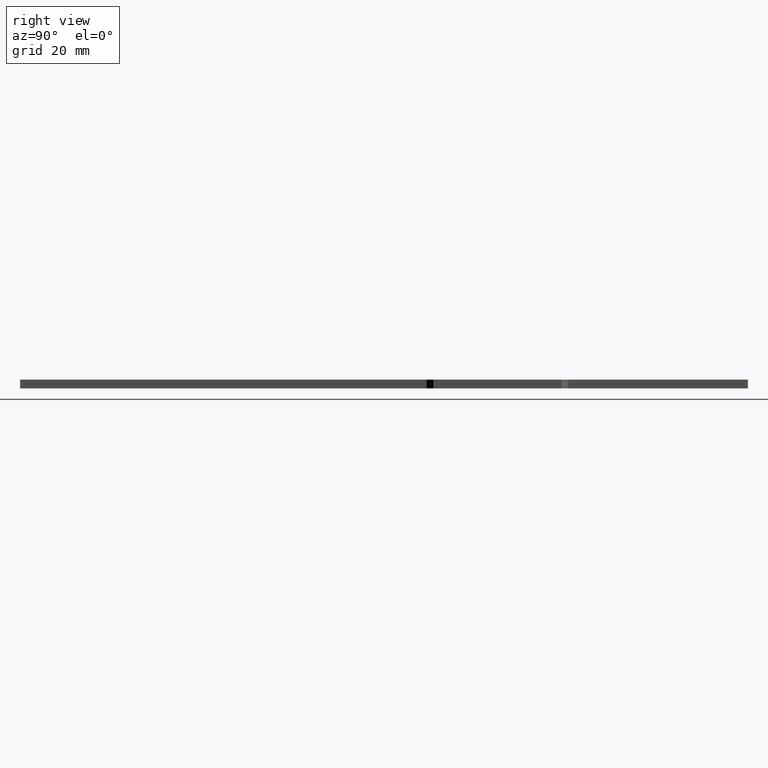
[diagram: clean part render]
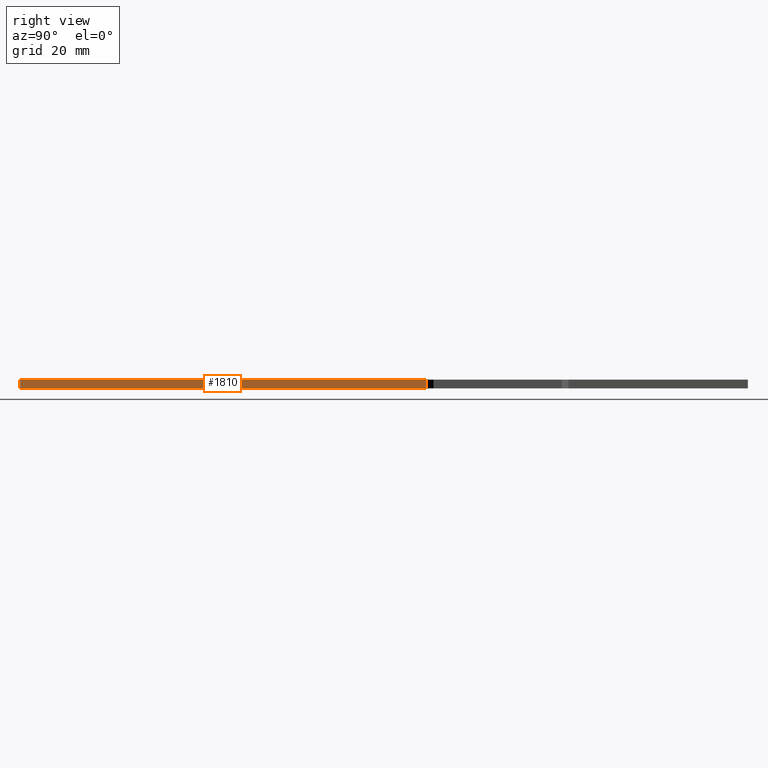
[diagram: same view with one face highlighted and labeled with its STEP entity id]
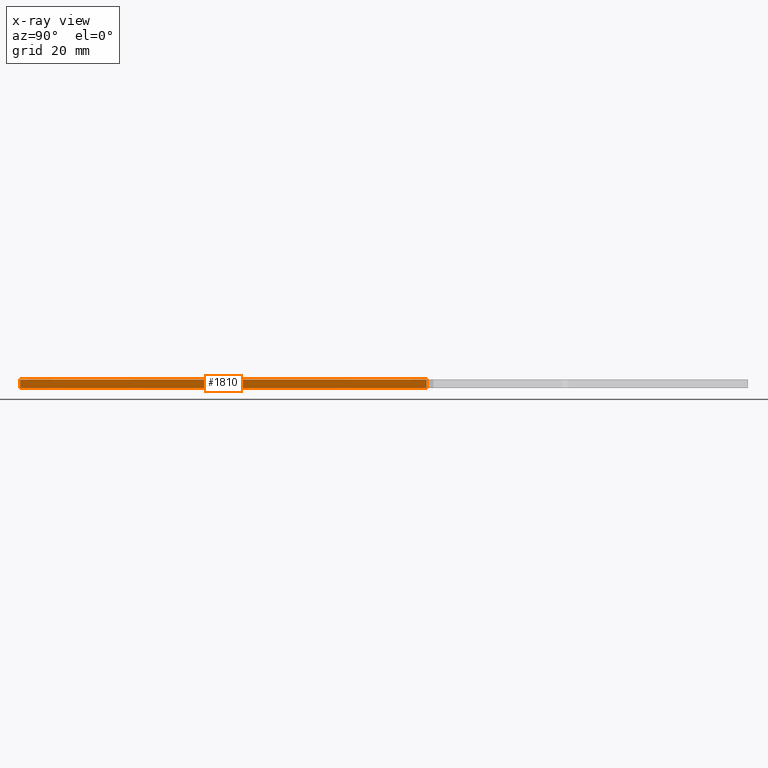
[diagram: x-ray of the same camera — body ghosted, the highlighted face saturated]
A machine part, right view. The second image highlights one B-rep face of the part: STEP entity #1810.
The next image is the same camera in x-ray: the body ghosted, the highlighted face saturated — about 0% of this face is hidden behind the body in this view.
In plain terms, the highlighted planar face has unit normal (-1, -0, 0).
Its self-contained STEP definition (entity closure, byte-faithful):
#34 = PLANE ( 'NONE',  #9527 ) ;
#77 = EDGE_CURVE ( 'NONE', #13752, #2659, #14512, .T. ) ;
#148 = CARTESIAN_POINT ( 'NONE',  ( 12.50000000000001599, -125.0000000000000284, 0.000000000000000000 ) ) ;
#283 = DIRECTION ( 'NONE',  ( 1.249000902703301108E-16, -1.000000000000000000, 0.000000000000000000 ) ) ;
#645 = CARTESIAN_POINT ( 'NONE',  ( 12.50000000000001599, -125.0000000000000284, 3.000000000000000000 ) ) ;
#769 = ORIENTED_EDGE ( 'NONE', *, *, #77, .T. ) ;
#1477 = EDGE_LOOP ( 'NONE', ( #769, #8706, #6434, #5408 ) ) ;
#1531 = VECTOR ( 'NONE', #13761, 1000.000000000000000 ) ;
#1810 = ADVANCED_FACE ( 'NONE', ( #3976 ), #34, .F. ) ;
#2410 = VECTOR ( 'NONE', #6577, 1000.000000000000000 ) ;
#2659 = VERTEX_POINT ( 'NONE', #11166 ) ;
#3976 = FACE_OUTER_BOUND ( 'NONE', #1477, .T. ) ;
#4358 = CARTESIAN_POINT ( 'NONE',  ( 12.50000000000001776, 14.64999999999996838, 3.000000000000000000 ) ) ;
#4401 = VERTEX_POINT ( 'NONE', #645 ) ;
#5408 = ORIENTED_EDGE ( 'NONE', *, *, #7815, .T. ) ;
#6286 = CARTESIAN_POINT ( 'NONE',  ( 12.49999999999998579, 125.0000000000000000, 3.000000000000000000 ) ) ;
#6411 = CARTESIAN_POINT ( 'NONE',  ( 12.49999999999998579, 125.0000000000000000, 0.000000000000000000 ) ) ;
#6434 = ORIENTED_EDGE ( 'NONE', *, *, #12846, .F. ) ;
#6577 = DIRECTION ( 'NONE',  ( -0.000000000000000000, -0.000000000000000000, 1.000000000000000000 ) ) ;
#6979 = LINE ( 'NONE', #11421, #2410 ) ;
#7521 = DIRECTION ( 'NONE',  ( -0.000000000000000000, -0.000000000000000000, -1.000000000000000000 ) ) ;
#7678 = DIRECTION ( 'NONE',  ( -1.000000000000000000, -1.249000902703301108E-16, 0.000000000000000000 ) ) ;
#7815 = EDGE_CURVE ( 'NONE', #4401, #13752, #8791, .T. ) ;
#8674 = VERTEX_POINT ( 'NONE', #4358 ) ;
#8706 = ORIENTED_EDGE ( 'NONE', *, *, #15862, .T. ) ;
#8789 = VECTOR ( 'NONE', #9136, 1000.000000000000000 ) ;
#8791 = LINE ( 'NONE', #11134, #15652 ) ;
#9136 = DIRECTION ( 'NONE',  ( -1.249000902703301108E-16, 1.000000000000000000, -0.000000000000000000 ) ) ;
#9527 = AXIS2_PLACEMENT_3D ( 'NONE', #6286, #7678, #283 ) ;
#11134 = CARTESIAN_POINT ( 'NONE',  ( 12.50000000000001599, -125.0000000000000284, 3.000000000000000000 ) ) ;
#11166 = CARTESIAN_POINT ( 'NONE',  ( 12.50000000000001776, 14.64999999999996838, 0.000000000000000000 ) ) ;
#11384 = CARTESIAN_POINT ( 'NONE',  ( 12.49999999999998579, 125.0000000000000000, 3.000000000000000000 ) ) ;
#11421 = CARTESIAN_POINT ( 'NONE',  ( 12.50000000000001776, 14.64999999999996838, 0.000000000000000000 ) ) ;
#12022 = LINE ( 'NONE', #11384, #8789 ) ;
#12846 = EDGE_CURVE ( 'NONE', #4401, #8674, #12022, .T. ) ;
#13752 = VERTEX_POINT ( 'NONE', #148 ) ;
#13761 = DIRECTION ( 'NONE',  ( -1.249000902703301108E-16, 1.000000000000000000, -0.000000000000000000 ) ) ;
#14512 = LINE ( 'NONE', #6411, #1531 ) ;
#15652 = VECTOR ( 'NONE', #7521, 1000.000000000000000 ) ;
#15862 = EDGE_CURVE ( 'NONE', #2659, #8674, #6979, .T. ) ;